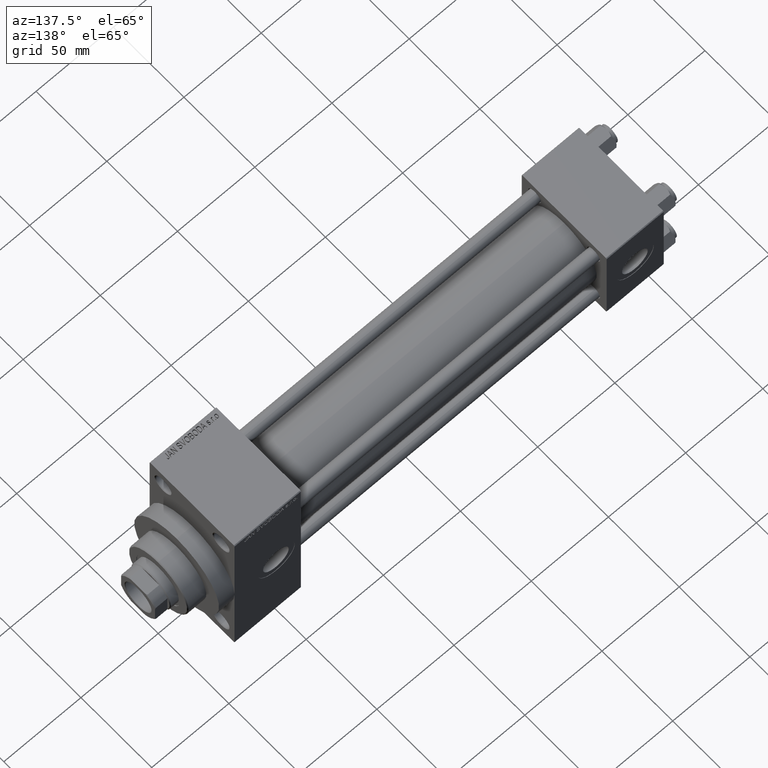
[diagram: clean part render]
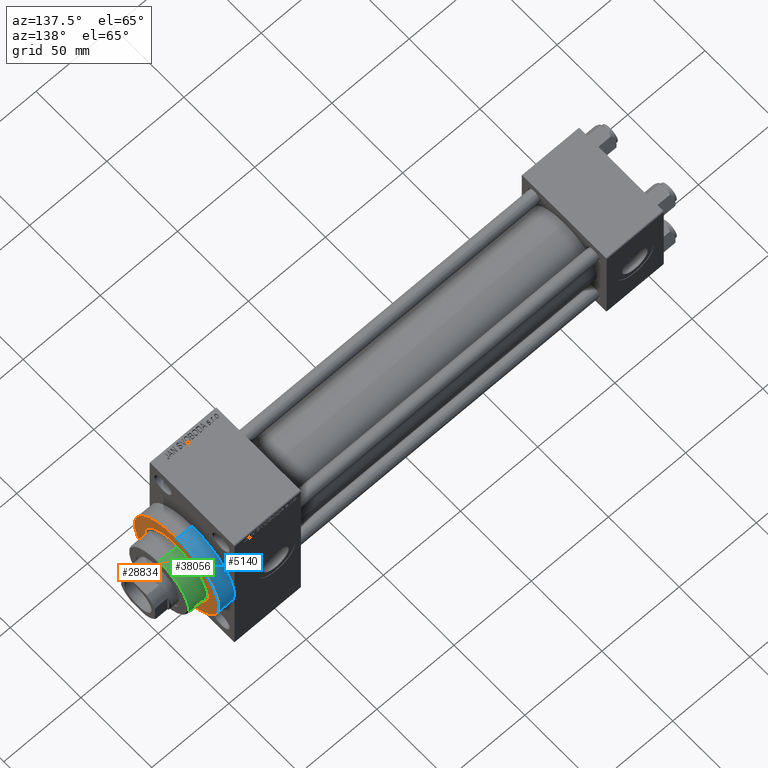
[diagram: same view with three faces highlighted in distinct colors, each labeled with its STEP entity id]
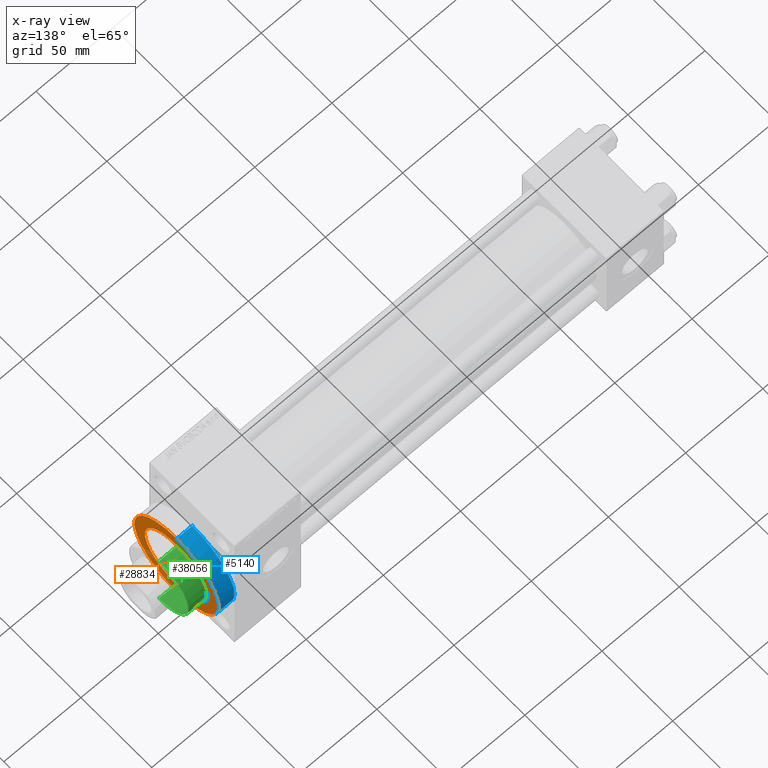
[diagram: x-ray of the same camera — body ghosted, the three highlighted faces saturated]
A machine part, auxiliary view with three faces highlighted in distinct colors.
The next image is the same camera in x-ray (body ghosted, the three faces saturated) — at least one of them is partly hidden behind the body in this view.
Their STEP definitions:

[orange] entity #28834 — the highlighted planar face has unit normal (1, 0, 0).
#741 = AXIS2_PLACEMENT_3D ( 'NONE', #20827, #31802, #47238 ) ;
#1208 = VERTEX_POINT ( 'NONE', #45893 ) ;
#3490 = ORIENTED_EDGE ( 'NONE', *, *, #25292, .F. ) ;
#4101 = EDGE_CURVE ( 'NONE', #14424, #16312, #22453, .T. ) ;
#4288 = EDGE_CURVE ( 'NONE', #37312, #1208, #23826, .T. ) ;
#5343 = DIRECTION ( 'NONE',  ( 1.000000000000000000, 0.000000000000000000, 0.000000000000000000 ) ) ;
#6931 = AXIS2_PLACEMENT_3D ( 'NONE', #30939, #42401, #15506 ) ;
#9586 = DIRECTION ( 'NONE',  ( 1.000000000000000000, 0.000000000000000000, 0.000000000000000000 ) ) ;
#11885 = CARTESIAN_POINT ( 'NONE',  ( 288.0000000000000568, 3.673940397442059178E-15, -30.00000000000000000 ) ) ;
#11938 = ORIENTED_EDGE ( 'NONE', *, *, #4101, .T. ) ;
#13283 = EDGE_LOOP ( 'NONE', ( #37609, #11938 ) ) ;
#14424 = VERTEX_POINT ( 'NONE', #11885 ) ;
#14778 = PLANE ( 'NONE',  #6931 ) ;
#15506 = DIRECTION ( 'NONE',  ( 0.000000000000000000, 0.000000000000000000, -1.000000000000000000 ) ) ;
#15581 = CIRCLE ( 'NONE', #23531, 22.50000000000000355 ) ;
#16076 = AXIS2_PLACEMENT_3D ( 'NONE', #39224, #5343, #40207 ) ;
#16312 = VERTEX_POINT ( 'NONE', #28601 ) ;
#17691 = DIRECTION ( 'NONE',  ( 0.000000000000000000, 0.000000000000000000, -1.000000000000000000 ) ) ;
#18291 = CARTESIAN_POINT ( 'NONE',  ( 288.0000000000000568, 0.000000000000000000, 0.000000000000000000 ) ) ;
#20827 = CARTESIAN_POINT ( 'NONE',  ( 288.0000000000000568, 0.000000000000000000, 0.000000000000000000 ) ) ;
#21520 = DIRECTION ( 'NONE',  ( 0.000000000000000000, 0.000000000000000000, -1.000000000000000000 ) ) ;
#22453 = CIRCLE ( 'NONE', #16076, 30.00000000000000000 ) ;
#22457 = EDGE_LOOP ( 'NONE', ( #3490, #24923 ) ) ;
#22724 = FACE_BOUND ( 'NONE', #22457, .T. ) ;
#23531 = AXIS2_PLACEMENT_3D ( 'NONE', #25154, #40357, #17691 ) ;
#23826 = CIRCLE ( 'NONE', #741, 22.50000000000000355 ) ;
#24923 = ORIENTED_EDGE ( 'NONE', *, *, #4288, .F. ) ;
#25154 = CARTESIAN_POINT ( 'NONE',  ( 288.0000000000000568, 0.000000000000000000, 0.000000000000000000 ) ) ;
#25292 = EDGE_CURVE ( 'NONE', #1208, #37312, #15581, .T. ) ;
#28601 = CARTESIAN_POINT ( 'NONE',  ( 288.0000000000000568, 0.000000000000000000, 30.00000000000000000 ) ) ;
#28834 = ADVANCED_FACE ( 'NONE', ( #22724, #45644 ), #14778, .T. ) ;
#30939 = CARTESIAN_POINT ( 'NONE',  ( 288.0000000000000568, 0.000000000000000000, 0.000000000000000000 ) ) ;
#31802 = DIRECTION ( 'NONE',  ( 1.000000000000000000, 0.000000000000000000, 0.000000000000000000 ) ) ;
#35847 = CARTESIAN_POINT ( 'NONE',  ( 288.0000000000000568, 2.755455298081545172E-15, 22.50000000000000355 ) ) ;
#37312 = VERTEX_POINT ( 'NONE', #35847 ) ;
#37609 = ORIENTED_EDGE ( 'NONE', *, *, #39338, .T. ) ;
#37956 = AXIS2_PLACEMENT_3D ( 'NONE', #18291, #9586, #21520 ) ;
#39224 = CARTESIAN_POINT ( 'NONE',  ( 288.0000000000000568, 0.000000000000000000, 0.000000000000000000 ) ) ;
#39338 = EDGE_CURVE ( 'NONE', #16312, #14424, #41126, .T. ) ;
#40207 = DIRECTION ( 'NONE',  ( 0.000000000000000000, 0.000000000000000000, -1.000000000000000000 ) ) ;
#40357 = DIRECTION ( 'NONE',  ( 1.000000000000000000, 0.000000000000000000, 0.000000000000000000 ) ) ;
#41126 = CIRCLE ( 'NONE', #37956, 30.00000000000000000 ) ;
#42401 = DIRECTION ( 'NONE',  ( 1.000000000000000000, 0.000000000000000000, 0.000000000000000000 ) ) ;
#45644 = FACE_OUTER_BOUND ( 'NONE', #13283, .T. ) ;
#45893 = CARTESIAN_POINT ( 'NONE',  ( 288.0000000000000568, 0.000000000000000000, -22.50000000000000355 ) ) ;
#47238 = DIRECTION ( 'NONE',  ( 0.000000000000000000, 0.000000000000000000, -1.000000000000000000 ) ) ;

[blue] entity #5140 — the highlighted cylindrical surface (partial cylindrical patch) has radius 30 mm, axis along (-1, -0, -0).
#931 = VERTEX_POINT ( 'NONE', #24495 ) ;
#1027 = AXIS2_PLACEMENT_3D ( 'NONE', #29846, #22611, #34072 ) ;
#3563 = VERTEX_POINT ( 'NONE', #38398 ) ;
#4101 = EDGE_CURVE ( 'NONE', #14424, #16312, #22453, .T. ) ;
#5140 = ADVANCED_FACE ( 'NONE', ( #30303 ), #30540, .T. ) ;
#5343 = DIRECTION ( 'NONE',  ( 1.000000000000000000, 0.000000000000000000, 0.000000000000000000 ) ) ;
#6368 = AXIS2_PLACEMENT_3D ( 'NONE', #11385, #19091, #23551 ) ;
#7998 = CARTESIAN_POINT ( 'NONE',  ( 278.0000000000000000, 0.000000000000000000, 30.00000000000000000 ) ) ;
#9192 = AXIS2_PLACEMENT_3D ( 'NONE', #42315, #32253, #12418 ) ;
#11385 = CARTESIAN_POINT ( 'NONE',  ( 288.0000000000000568, 0.000000000000000000, 0.000000000000000000 ) ) ;
#11885 = CARTESIAN_POINT ( 'NONE',  ( 288.0000000000000568, 3.673940397442059178E-15, -30.00000000000000000 ) ) ;
#11959 = ORIENTED_EDGE ( 'NONE', *, *, #20214, .T. ) ;
#12418 = DIRECTION ( 'NONE',  ( 0.000000000000000000, 0.000000000000000000, -1.000000000000000000 ) ) ;
#13039 = VERTEX_POINT ( 'NONE', #7998 ) ;
#13502 = EDGE_CURVE ( 'NONE', #16312, #13039, #32813, .T. ) ;
#13704 = CARTESIAN_POINT ( 'NONE',  ( 288.0000000000000568, 3.673940397442059178E-15, -30.00000000000000000 ) ) ;
#14424 = VERTEX_POINT ( 'NONE', #11885 ) ;
#16076 = AXIS2_PLACEMENT_3D ( 'NONE', #39224, #5343, #40207 ) ;
#16312 = VERTEX_POINT ( 'NONE', #28601 ) ;
#16322 = ORIENTED_EDGE ( 'NONE', *, *, #22552, .T. ) ;
#16461 = EDGE_CURVE ( 'NONE', #931, #13039, #22494, .T. ) ;
#17627 = CARTESIAN_POINT ( 'NONE',  ( 288.0000000000000568, 0.000000000000000000, 30.00000000000000000 ) ) ;
#17870 = DIRECTION ( 'NONE',  ( -1.000000000000000000, -0.000000000000000000, -0.000000000000000000 ) ) ;
#19091 = DIRECTION ( 'NONE',  ( -1.000000000000000000, -0.000000000000000000, -0.000000000000000000 ) ) ;
#20214 = EDGE_CURVE ( 'NONE', #14424, #3563, #40345, .T. ) ;
#22453 = CIRCLE ( 'NONE', #16076, 30.00000000000000000 ) ;
#22494 = CIRCLE ( 'NONE', #1027, 30.00000000000000000 ) ;
#22552 = EDGE_CURVE ( 'NONE', #3563, #931, #48219, .T. ) ;
#22611 = DIRECTION ( 'NONE',  ( 1.000000000000000000, 0.000000000000000000, 0.000000000000000000 ) ) ;
#23551 = DIRECTION ( 'NONE',  ( 0.000000000000000000, 0.000000000000000000, 1.000000000000000000 ) ) ;
#24495 = CARTESIAN_POINT ( 'NONE',  ( 278.0000000000000000, 30.00000000000000000, 0.000000000000000000 ) ) ;
#28601 = CARTESIAN_POINT ( 'NONE',  ( 288.0000000000000568, 0.000000000000000000, 30.00000000000000000 ) ) ;
#29846 = CARTESIAN_POINT ( 'NONE',  ( 278.0000000000000000, 0.000000000000000000, 0.000000000000000000 ) ) ;
#30303 = FACE_OUTER_BOUND ( 'NONE', #31369, .T. ) ;
#30540 = CYLINDRICAL_SURFACE ( 'NONE', #6368, 30.00000000000000000 ) ;
#31369 = EDGE_LOOP ( 'NONE', ( #42162, #11959, #16322, #35949, #43549 ) ) ;
#31424 = VECTOR ( 'NONE', #47082, 1000.000000000000000 ) ;
#32253 = DIRECTION ( 'NONE',  ( 1.000000000000000000, 0.000000000000000000, 0.000000000000000000 ) ) ;
#32813 = LINE ( 'NONE', #17627, #34344 ) ;
#34072 = DIRECTION ( 'NONE',  ( 0.000000000000000000, 0.000000000000000000, -1.000000000000000000 ) ) ;
#34344 = VECTOR ( 'NONE', #17870, 1000.000000000000000 ) ;
#35949 = ORIENTED_EDGE ( 'NONE', *, *, #16461, .T. ) ;
#38398 = CARTESIAN_POINT ( 'NONE',  ( 278.0000000000000000, 3.673940397442059178E-15, -30.00000000000000000 ) ) ;
#39224 = CARTESIAN_POINT ( 'NONE',  ( 288.0000000000000568, 0.000000000000000000, 0.000000000000000000 ) ) ;
#40207 = DIRECTION ( 'NONE',  ( 0.000000000000000000, 0.000000000000000000, -1.000000000000000000 ) ) ;
#40345 = LINE ( 'NONE', #13704, #31424 ) ;
#42162 = ORIENTED_EDGE ( 'NONE', *, *, #4101, .F. ) ;
#42315 = CARTESIAN_POINT ( 'NONE',  ( 278.0000000000000000, 0.000000000000000000, 0.000000000000000000 ) ) ;
#43549 = ORIENTED_EDGE ( 'NONE', *, *, #13502, .F. ) ;
#47082 = DIRECTION ( 'NONE',  ( -1.000000000000000000, -0.000000000000000000, -0.000000000000000000 ) ) ;
#48219 = CIRCLE ( 'NONE', #9192, 30.00000000000000000 ) ;

[green] entity #38056 — the highlighted cylindrical surface (partial cylindrical patch) has radius 21 mm, axis along (-1, 0, 0).
#1138 = ORIENTED_EDGE ( 'NONE', *, *, #26472, .T. ) ;
#1588 = VECTOR ( 'NONE', #19566, 1000.000000000000000 ) ;
#3107 = DIRECTION ( 'NONE',  ( 0.000000000000000000, 0.000000000000000000, -1.000000000000000000 ) ) ;
#4619 = CARTESIAN_POINT ( 'NONE',  ( 21.00000000000000000, 2.571758278209441661E-15, 43.25999999999999801 ) ) ;
#5179 = EDGE_CURVE ( 'NONE', #27406, #32461, #42246, .T. ) ;
#5652 = DIRECTION ( 'NONE',  ( -0.000000000000000000, -0.000000000000000000, -1.000000000000000000 ) ) ;
#6086 = CARTESIAN_POINT ( 'NONE',  ( 0.000000000000000000, 0.000000000000000000, 43.25999999999999801 ) ) ;
#6094 = DIRECTION ( 'NONE',  ( 1.000000000000000000, 0.000000000000000000, 0.000000000000000000 ) ) ;
#6827 = DIRECTION ( 'NONE',  ( 0.000000000000000000, 0.000000000000000000, 1.000000000000000000 ) ) ;
#7741 = AXIS2_PLACEMENT_3D ( 'NONE', #6086, #6827, #21281 ) ;
#9130 = FACE_OUTER_BOUND ( 'NONE', #21223, .T. ) ;
#10376 = ORIENTED_EDGE ( 'NONE', *, *, #5179, .T. ) ;
#13393 = LINE ( 'NONE', #40279, #37185 ) ;
#15609 = AXIS2_PLACEMENT_3D ( 'NONE', #24318, #35051, #32046 ) ;
#15683 = CIRCLE ( 'NONE', #7741, 21.00000000000000000 ) ;
#19566 = DIRECTION ( 'NONE',  ( -0.000000000000000000, -0.000000000000000000, -1.000000000000000000 ) ) ;
#20306 = VERTEX_POINT ( 'NONE', #48822 ) ;
#20433 = ORIENTED_EDGE ( 'NONE', *, *, #36792, .T. ) ;
#21223 = EDGE_LOOP ( 'NONE', ( #36098, #1138, #10376, #20433 ) ) ;
#21281 = DIRECTION ( 'NONE',  ( 1.000000000000000000, 0.000000000000000000, 0.000000000000000000 ) ) ;
#21289 = CARTESIAN_POINT ( 'NONE',  ( 0.000000000000000000, 0.000000000000000000, 54.75999999999999091 ) ) ;
#24318 = CARTESIAN_POINT ( 'NONE',  ( 0.000000000000000000, 0.000000000000000000, 55.26000000000000512 ) ) ;
#24329 = AXIS2_PLACEMENT_3D ( 'NONE', #21289, #3107, #6094 ) ;
#26472 = EDGE_CURVE ( 'NONE', #20306, #27406, #45837, .T. ) ;
#27270 = CARTESIAN_POINT ( 'NONE',  ( -21.00000000000000000, 0.000000000000000000, 43.25999999999999801 ) ) ;
#27406 = VERTEX_POINT ( 'NONE', #36486 ) ;
#28057 = CYLINDRICAL_SURFACE ( 'NONE', #15609, 21.00000000000000000 ) ;
#29612 = EDGE_CURVE ( 'NONE', #20306, #32457, #13393, .T. ) ;
#32046 = DIRECTION ( 'NONE',  ( -1.000000000000000000, 0.000000000000000000, 0.000000000000000000 ) ) ;
#32457 = VERTEX_POINT ( 'NONE', #4619 ) ;
#32461 = VERTEX_POINT ( 'NONE', #27270 ) ;
#34270 = CARTESIAN_POINT ( 'NONE',  ( -21.00000000000000000, 0.000000000000000000, 55.26000000000000512 ) ) ;
#35051 = DIRECTION ( 'NONE',  ( -0.000000000000000000, -0.000000000000000000, -1.000000000000000000 ) ) ;
#36098 = ORIENTED_EDGE ( 'NONE', *, *, #29612, .F. ) ;
#36486 = CARTESIAN_POINT ( 'NONE',  ( -21.00000000000000000, 0.000000000000000000, 54.75999999999999091 ) ) ;
#36792 = EDGE_CURVE ( 'NONE', #32461, #32457, #15683, .T. ) ;
#37185 = VECTOR ( 'NONE', #5652, 1000.000000000000000 ) ;
#38056 = ADVANCED_FACE ( 'NONE', ( #9130 ), #28057, .T. ) ;
#40279 = CARTESIAN_POINT ( 'NONE',  ( 21.00000000000000000, 2.571758278209441661E-15, 55.26000000000000512 ) ) ;
#42246 = LINE ( 'NONE', #34270, #1588 ) ;
#45837 = CIRCLE ( 'NONE', #24329, 21.00000000000000000 ) ;
#48822 = CARTESIAN_POINT ( 'NONE',  ( 21.00000000000000000, 2.571758278209441661E-15, 54.75999999999999091 ) ) ;